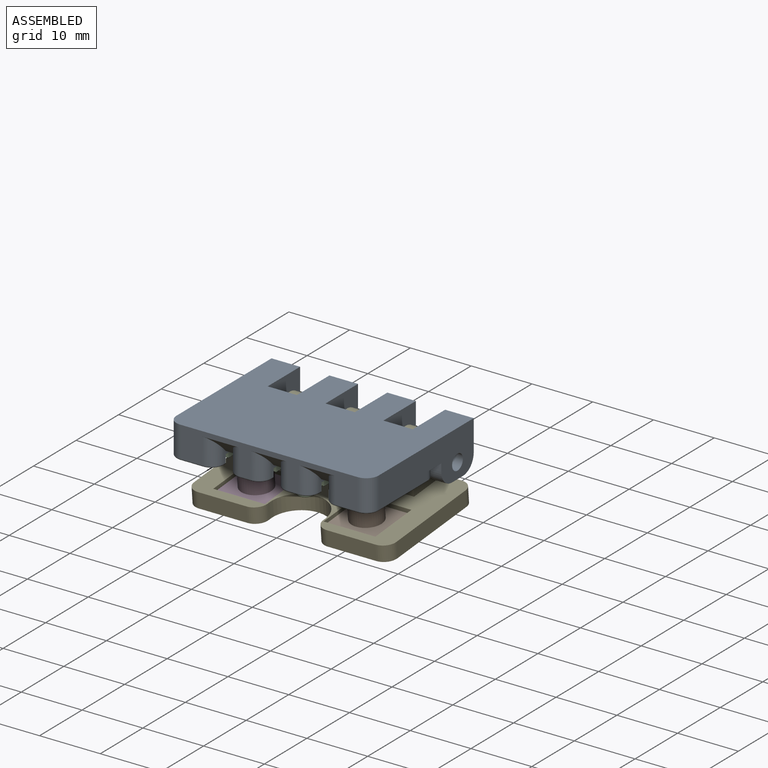
[diagram: assembled view]
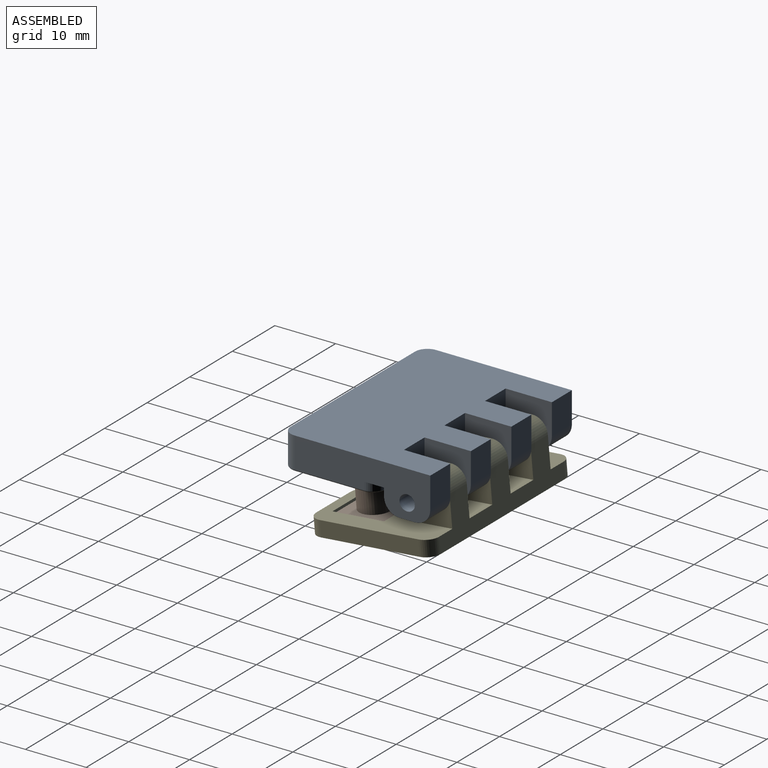
[diagram: assembled view, second angle]
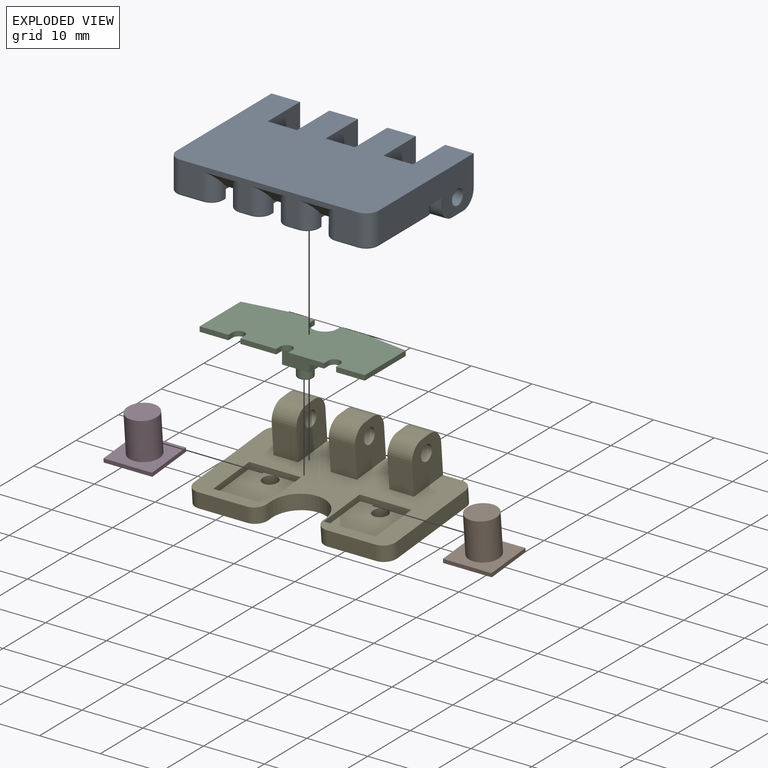
[diagram: exploded view]
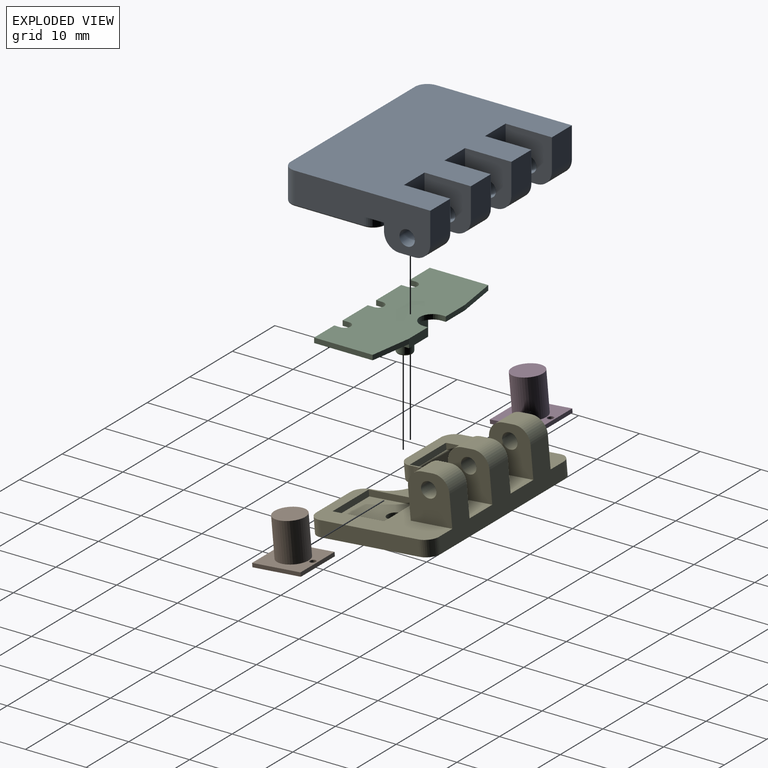
[diagram: exploded view, second angle]
ASSEMBLY  parts=5 mates=4
PART A: 121 faces, bbox 33.6x24.6x7.6 mm
  f0: plane 5.23x1.27mm, normal (0,1,0), area 6.6mm2, adj f7,f18,f64,f90
  f1: plane 5.89x1.27mm, normal (0,1,0), area 7.5mm2, adj f7,f61,f65,f116
  f2: plane 5.89x1.27mm, normal (0,1,0), area 7.5mm2, adj f7,f58,f62,f110
  f3: plane 29.21x5.08mm, normal (0,-1,0), area 71mm2, adj f33,f67,f68,f69,f73,f74,f75,f76
  f4: plane 32.77x16.52mm, normal (0,0,-1), area 145.7mm2, adj f41,f42,f50,f51,f83,f84,f85,f86
  f5: plane 5.38x2.03mm, normal (0,0,-1), area 9.6mm2, adj f114,f115,f116,f117,f118,f119
  f6: plane 5.38x2.03mm, normal (0,0,-1), area 9.6mm2, adj f108,f109,f110,f111,f112,f113
  f7: plane 28.19x11.68mm, normal (0,0,-1), area 296.7mm2, adj f0,f1,f2,f17,f18,f19,f20,f21
  f8: plane 4.7x2.54mm, normal (0,0,-1), area 11.9mm2, adj f41,f45,f48,f51
  f9: plane 4.7x2.54mm, normal (0,0,-1), area 11.9mm2, adj f38,f42,f47,f50
  f10: plane 4.7x2.54mm, normal (0,0,-1), area 11.9mm2, adj f28,f39,f46,f49
  f11: plane 5.08x4.7mm, normal (0,1,0), area 23.9mm2, adj f27,f33,f44,f53
  f12: plane 5.08x4.7mm, normal (0,1,0), area 23.9mm2, adj f33,f41,f45,f48
  f13: plane 5.08x4.7mm, normal (0,1,0), area 23.9mm2, adj f33,f38,f42,f47
  f14: plane 4.7x1.27mm, normal (0,-1,0), area 6mm2, adj f27,f31,f44,f52
  f15: plane 1.27x0.33mm, normal (0,-1,0), area 0.4mm2, adj f26,f31,f45,f51
  f16: plane 1.27x0.33mm, normal (0,-1,0), area 0.4mm2, adj f29,f32,f38,f50
  f17: plane 5.23x1.27mm, normal (0,1,0), area 6.6mm2, adj f7,f30,f59,f106
  f18: plane 10.57x1.27mm, normal (1,0,0), area 13.4mm2, adj f0,f7,f19,f91
  f19: plane 7.51x1.27mm, normal (0.15,-0.99,0), area 9.6mm2, adj f7,f18,f20,f92
  f20: plane 4.99x1.27mm, normal (0,-1,0), area 6.3mm2, adj f7,f19,f21,f93
  f21: plane 1.27x1.17mm, normal (-1,0,0), area 1.5mm2, adj f7,f20,f22,f94
  f22: cylinder r=1.6mm len=3.2mm, axis (0,0,1), area 6.4mm2, adj f7,f21,f23,f96
  f23: plane 1.27x1.17mm, normal (1,0,0), area 1.5mm2, adj f7,f22,f24,f98
  f24: plane 4.99x1.27mm, normal (0,-1,0), area 6.3mm2, adj f7,f23,f25,f100
  f25: plane 7.51x1.27mm, normal (-0.15,-0.99,0), area 9.6mm2, adj f7,f24,f30,f102
  f26: plane 8.13x1.27mm, normal (-0.15,0.99,0), area 10.4mm2, adj f15,f31,f79,f83
  f27: plane 22.35x7.62mm, normal (-1,0,0), area 121mm2, adj f11,f14,f31,f33,f35,f52,f53,f55
  f28: plane 22.35x7.62mm, normal (1,0,0), area 121mm2, adj f10,f32,f33,f34,f36,f46,f49,f57
  f29: plane 8.13x1.27mm, normal (0.15,0.99,0), area 10.4mm2, adj f16,f32,f82,f95
  f30: plane 10.57x1.27mm, normal (-1,0,0), area 13.4mm2, adj f7,f17,f25,f104
  f31: plane 9.86x3.21mm, normal (0,0,-1), area 7.8mm2, adj f14,f15,f26,f27,f43,f79
  f32: plane 9.86x3.21mm, normal (0,0,-1), area 7.8mm2, adj f16,f28,f29,f34,f37,f82
  f33: plane 33.27x24.38mm, normal (0,0,1), area 699.3mm2, adj f3,f11,f12,f13,f27,f28,f36,f37
  f34: plane 4.7x1.27mm, normal (0,-1,0), area 6mm2, adj f28,f32,f39,f49
  f35: plane 4.7x2.54mm, normal (0,0,-1), area 11.9mm2, adj f27,f44,f52,f53
  f36: plane 5.08x4.7mm, normal (0,1,0), area 23.9mm2, adj f28,f33,f39,f46
  f37: plane 4.83x3.81mm, normal (0,1,0), area 18.4mm2, adj f32,f33,f38,f39
  f38: plane 7.62x7.62mm, normal (1,0,0), area 50.2mm2, adj f9,f13,f16,f33,f37,f47,f50,f56
  f39: plane 7.62x7.62mm, normal (-1,0,0), area 50.2mm2, adj f10,f33,f34,f36,f37,f46,f49,f57
  f40: plane 5.08x4.83mm, normal (0,1,0), area 24.5mm2, adj f33,f41,f42,f120
  f41: plane 7.87x7.62mm, normal (1,0,0), area 50.2mm2, adj f4,f8,f12,f33,f40,f48,f51,f54
  f42: plane 7.87x7.62mm, normal (-1,0,0), area 50.2mm2, adj f4,f9,f13,f33,f40,f47,f50,f56
  f43: plane 4.83x3.81mm, normal (0,1,0), area 18.4mm2, adj f31,f33,f44,f45
  f44: plane 7.62x7.62mm, normal (1,0,0), area 50.2mm2, adj f11,f14,f33,f35,f43,f52,f53,f55
  f45: plane 7.62x7.62mm, normal (-1,0,0), area 50.2mm2, adj f8,f12,f15,f33,f43,f48,f51,f54
  f46: cylinder r=2.54mm len=4.7mm, axis (1,0,0), area 18.7mm2, adj f10,f28,f36,f39
  f47: cylinder r=2.54mm len=4.7mm, axis (1,0,0), area 18.7mm2, adj f9,f13,f38,f42
  f48: cylinder r=2.54mm len=4.7mm, axis (1,0,0), area 18.7mm2, adj f8,f12,f41,f45
  f49: cylinder r=2.54mm len=4.7mm, axis (-1,0,0), area 18.7mm2, adj f10,f28,f34,f39
  f50: cylinder r=2.54mm len=4.7mm, axis (-1,0,0), area 17.9mm2, adj f4,f9,f16,f38,f42,f95
  f51: cylinder r=2.54mm len=4.7mm, axis (-1,0,0), area 17.9mm2, adj f4,f8,f15,f41,f45,f83
  f52: cylinder r=2.54mm len=4.7mm, axis (-1,0,0), area 18.7mm2, adj f14,f27,f35,f44
  f53: cylinder r=2.54mm len=4.7mm, axis (1,0,0), area 18.7mm2, adj f11,f27,f35,f44
  f54: cylinder r=1.27mm len=4.7mm, axis (-1,0,0), area 37.5mm2, adj f41,f45
  f55: cylinder r=1.27mm len=4.7mm, axis (-1,0,0), area 37.5mm2, adj f27,f44
  f56: cylinder r=1.27mm len=4.7mm, axis (-1,0,0), area 37.5mm2, adj f38,f42
  f57: cylinder r=1.27mm len=4.7mm, axis (-1,0,0), area 37.5mm2, adj f28,f39
  f58: plane 3.3x2.24mm, normal (1,0,0), area 2.2mm2, adj f2,f7,f60,f67,f70,f77,f108
  f59: plane 3.3x2.24mm, normal (-1,0,0), area 2.2mm2, adj f7,f17,f60,f67,f70,f78,f107
  f60: plane 2.34x1.98mm, normal (0,0,-1), area 4.6mm2, adj f58,f59,f67,f70
  f61: plane 3.3x2.24mm, normal (1,0,0), area 2.2mm2, adj f1,f7,f63,f68,f71,f75,f114
  f62: plane 3.3x2.24mm, normal (-1,0,0), area 2.2mm2, adj f2,f7,f63,f68,f71,f76,f112
  f63: plane 2.34x1.98mm, normal (0,0,-1), area 4.6mm2, adj f61,f62,f68,f71
  f64: plane 3.3x2.24mm, normal (1,0,0), area 2.2mm2, adj f0,f7,f66,f69,f72,f73,f89
  f65: plane 3.3x2.24mm, normal (-1,0,0), area 2.2mm2, adj f1,f7,f66,f69,f72,f74,f118
  f66: plane 2.34x1.98mm, normal (0,0,-1), area 4.6mm2, adj f64,f65,f69,f72
  f67: plane 6.05x2.54mm, normal (0,-0.71,-0.71), area 9.6mm2, adj f3,f58,f59,f60,f77,f78
  f68: plane 6.05x2.54mm, normal (0,-0.71,-0.71), area 9.6mm2, adj f3,f61,f62,f63,f75,f76
  f69: plane 6.05x2.54mm, normal (0,-0.71,-0.71), area 9.6mm2, adj f3,f64,f65,f66,f73,f74
  f70: plane 1.98x0.46mm, normal (0,-0.71,-0.71), area 1.3mm2, adj f7,f58,f59,f60
  f71: plane 1.98x0.46mm, normal (0,-0.71,-0.71), area 1.3mm2, adj f7,f61,f62,f63
  f72: plane 1.98x0.46mm, normal (0,-0.71,-0.71), area 1.3mm2, adj f7,f64,f65,f66
  f73: cylinder r=2.03mm len=4.27mm, axis (0,0,1), area 11.3mm2, adj f3,f64,f69,f88
  f74: cylinder r=2.03mm len=4.27mm, axis (0,0,-1), area 11.3mm2, adj f3,f65,f69,f119
  f75: cylinder r=2.03mm len=4.27mm, axis (0,0,1), area 11.3mm2, adj f3,f61,f68,f115
  f76: cylinder r=2.03mm len=4.27mm, axis (0,0,-1), area 11.3mm2, adj f3,f62,f68,f113
  f77: cylinder r=2.03mm len=4.27mm, axis (0,0,1), area 11.3mm2, adj f3,f58,f67,f109
  f78: cylinder r=2.03mm len=4.27mm, axis (0,0,-1), area 11.3mm2, adj f3,f59,f67,f105
  f79: cylinder r=2.03mm len=2.01mm, axis (0,0,-1), area 3.7mm2, adj f26,f27,f31,f84
  f80: cylinder r=2.03mm len=5.08mm, axis (0,0,-1), area 16.2mm2, adj f3,f27,f33,f86
  f81: cylinder r=2.03mm len=5.08mm, axis (0,0,1), area 16.2mm2, adj f3,f28,f33,f101
  f82: cylinder r=2.03mm len=2.01mm, axis (0,0,1), area 3.7mm2, adj f28,f29,f32,f97
  f83: cylinder r=0.25mm len=9.95mm, axis (0.99,0.15,0), area 3.6mm2, adj f4,f26,f51,f84
  f84: torus R=1.78mm, axis (0,0,1), area 1.1mm2, adj f4,f79,f83,f85
  f85: cylinder r=0.25mm len=11.52mm, axis (0,1,0), area 4.6mm2, adj f4,f27,f84,f86
  f86: torus R=1.78mm, axis (0,0,1), area 1.2mm2, adj f4,f80,f85,f87
  f87: cylinder r=0.25mm len=3.71mm, axis (-1,0,0), area 1.5mm2, adj f3,f4,f86,f88
  f88: torus R=1.78mm, axis (0,0,1), area 1.2mm2, adj f4,f73,f87,f89
  f89: cylinder r=0.25mm len=0.51mm, axis (0,-1,0), area 0.2mm2, adj f4,f64,f88,f90
  f90: cylinder r=0.25mm len=5.49mm, axis (1,0,0), area 2.1mm2, adj f0,f4,f89,f91
  f91: cylinder r=0.25mm len=11.05mm, axis (0,-1,0), area 4.3mm2, adj f4,f18,f90,f92
  f92: cylinder r=0.25mm len=7.78mm, axis (-0.99,-0.15,0), area 3.1mm2, adj f4,f19,f91,f93
  f93: cylinder r=0.25mm len=5.26mm, axis (-1,0,0), area 2mm2, adj f4,f20,f92,f94
  f94: cylinder r=0.25mm len=1.42mm, axis (0,1,0), area 0.5mm2, adj f4,f21,f93,f96
  f95: cylinder r=0.25mm len=9.95mm, axis (0.99,-0.15,0), area 3.6mm2, adj f4,f29,f50,f97
  f96: torus R=1.35mm, axis (0,0,1), area 1.9mm2, adj f4,f22,f94,f98
  f97: torus R=1.78mm, axis (0,0,1), area 1.1mm2, adj f4,f82,f95,f99
  f98: cylinder r=0.25mm len=1.42mm, axis (0,-1,0), area 0.5mm2, adj f4,f23,f96,f100
  f99: cylinder r=0.25mm len=11.52mm, axis (0,-1,0), area 4.6mm2, adj f4,f28,f97,f101
  f100: cylinder r=0.25mm len=5.26mm, axis (-1,0,0), area 2mm2, adj f4,f24,f98,f102
  f101: torus R=1.78mm, axis (0,0,1), area 1.2mm2, adj f4,f81,f99,f103
  f102: cylinder r=0.25mm len=7.78mm, axis (-0.99,0.15,0), area 3.1mm2, adj f4,f25,f100,f104
  f103: cylinder r=0.25mm len=3.71mm, axis (-1,0,0), area 1.5mm2, adj f3,f4,f101,f105
  f104: cylinder r=0.25mm len=11.05mm, axis (0,1,0), area 4.3mm2, adj f4,f30,f102,f106
  f105: torus R=1.78mm, axis (0,0,1), area 1.2mm2, adj f4,f78,f103,f107
  f106: cylinder r=0.25mm len=5.49mm, axis (1,0,0), area 2.1mm2, adj f4,f17,f104,f107
  f107: cylinder r=0.25mm len=0.51mm, axis (0,1,0), area 0.2mm2, adj f4,f59,f105,f106
  f108: cylinder r=0.25mm len=0.51mm, axis (0,-1,0), area 0.2mm2, adj f6,f58,f109,f110
  f109: torus R=1.78mm, axis (0,0,1), area 1.2mm2, adj f6,f77,f108,f111
  f110: cylinder r=0.25mm len=5.89mm, axis (1,0,0), area 2.2mm2, adj f2,f6,f108,f112
  f111: cylinder r=0.25mm len=1.83mm, axis (-1,0,0), area 0.7mm2, adj f3,f6,f109,f113
  f112: cylinder r=0.25mm len=0.51mm, axis (0,1,0), area 0.2mm2, adj f6,f62,f110,f113
  f113: torus R=1.78mm, axis (0,0,1), area 1.2mm2, adj f6,f76,f111,f112
  f114: cylinder r=0.25mm len=0.51mm, axis (0,-1,0), area 0.2mm2, adj f5,f61,f115,f116
  f115: torus R=1.78mm, axis (0,0,1), area 1.2mm2, adj f5,f75,f114,f117
  f116: cylinder r=0.25mm len=5.89mm, axis (1,0,0), area 2.2mm2, adj f1,f5,f114,f118
  f117: cylinder r=0.25mm len=1.83mm, axis (-1,0,0), area 0.7mm2, adj f3,f5,f115,f119
  f118: cylinder r=0.25mm len=0.51mm, axis (0,1,0), area 0.2mm2, adj f5,f65,f116,f119
  f119: torus R=1.78mm, axis (0,0,1), area 1.2mm2, adj f5,f74,f117,f118
  f120: cylinder r=0.25mm len=4.83mm, axis (-1,0,0), area 1.9mm2, adj f4,f40,f41,f42
PART B: 9 faces, bbox 8x8x7 mm
  f0: plane 8x0.64mm, normal (0,1,0), area 5.1mm2, adj f1,f3,f4,f5
  f1: plane 8x0.64mm, normal (-1,0,0), area 5.1mm2, adj f0,f2,f4,f5
  f2: plane 8x0.64mm, normal (0,-1,0), area 5.1mm2, adj f1,f3,f4,f5
  f3: plane 8x0.64mm, normal (1,0,0), area 5.1mm2, adj f0,f2,f4,f5
  f4: plane 8x8mm, normal (0,0,1), area 42.9mm2, adj f0,f1,f2,f3,f6,f8
  f5: plane 8x8mm, normal (0,0,-1), area 63.2mm2, adj f0,f1,f2,f3,f8
  f6: cylinder r=2.54mm len=6.35mm, axis (0,0,-1), area 101.3mm2, adj f4,f7
  f7: plane 5.08x5.08mm, normal (0,0,1), area 20.3mm2, adj f6
  f8: cylinder r=0.51mm len=1.02mm, axis (0,0,1), area 2mm2, adj f4,f5
PART C: 36 faces, bbox 27.2x10.7x5.9 mm
  f0: plane 9.63x0.81mm, normal (1,0,0), area 7.8mm2, adj f1,f21,f22,f23
  f1: plane 7.04x1.04mm, normal (0.15,0.99,0), area 5.8mm2, adj f0,f2,f22,f23
  f2: plane 4.45x0.81mm, normal (0,1,0), area 3.6mm2, adj f1,f3,f22,f23
  f3: plane 0.81x0.66mm, normal (-1,0,0), area 0.5mm2, adj f2,f4,f22,f23
  f4: cylinder r=2.11mm len=4.22mm, axis (0,0,-1), area 5.4mm2, adj f3,f5,f22,f23
  f5: plane 0.81x0.66mm, normal (1,0,0), area 0.5mm2, adj f4,f6,f22,f23
  f6: plane 4.45x0.81mm, normal (0,1,0), area 3.6mm2, adj f5,f7,f22,f23
  f7: plane 7.04x1.04mm, normal (-0.15,0.99,0), area 5.8mm2, adj f6,f8,f22,f23
  f8: plane 9.63x0.81mm, normal (-1,0,0), area 7.8mm2, adj f7,f9,f22,f23
  f9: plane 4.72x0.81mm, normal (0,-1,0), area 3.8mm2, adj f8,f10,f22,f23
  f10: plane 1.02x0.81mm, normal (1,0,0), area 0.8mm2, adj f9,f11,f22,f23
  f11: cylinder r=0.99mm len=1.98mm, axis (0,0,-1), area 2.5mm2, adj f10,f12,f22,f23
  f12: plane 1.02x0.81mm, normal (-1,0,0), area 0.8mm2, adj f11,f13,f22,f23
  f13: plane 5.89x0.81mm, normal (0,-1,0), area 4.8mm2, adj f12,f14,f22,f23
  f14: plane 1.02x0.81mm, normal (1,0,0), area 0.8mm2, adj f13,f15,f22,f23
  f15: cylinder r=0.99mm len=1.98mm, axis (0,0,-1), area 2.5mm2, adj f14,f16,f22,f23
  f16: plane 1.02x0.81mm, normal (-1,0,0), area 0.8mm2, adj f15,f17,f22,f23
  f17: plane 5.89x0.81mm, normal (0,-1,0), area 4.8mm2, adj f16,f18,f22,f23
  f18: plane 1.02x0.81mm, normal (1,0,0), area 0.8mm2, adj f17,f19,f22,f23
  f19: cylinder r=0.99mm len=1.98mm, axis (0,0,-1), area 2.5mm2, adj f18,f20,f22,f23
  f20: plane 1.02x0.81mm, normal (-1,0,0), area 0.8mm2, adj f19,f21,f22,f23
  f21: plane 4.72x0.81mm, normal (0,-1,0), area 3.8mm2, adj f0,f20,f22,f23
  f22: plane 27.18x10.67mm, normal (0,0,1), area 262.2mm2, adj f0,f1,f2,f3,f4,f5,f6,f7
  f23: plane 27.18x10.67mm, normal (0,0,-1), area 216mm2, adj f0,f1,f2,f3,f4,f5,f6,f7
  f24: cylinder r=2.03mm len=4.06mm, axis (0,0,1), area 1.6mm2, adj f23,f25
  f25: plane 4.06x4.06mm, normal (0,0,-1), area 13mm2, adj f24
  f26: cylinder r=2.03mm len=4.06mm, axis (0,0,1), area 1.6mm2, adj f23,f27
  f27: plane 4.06x4.06mm, normal (0,0,-1), area 13mm2, adj f26
  f28: plane 4.5x3.05mm, normal (0,1,0), area 13.7mm2, adj f23,f29,f31,f32
  f29: plane 4.5x3.05mm, normal (1,0,0), area 13.7mm2, adj f23,f28,f30,f32
  f30: plane 4.5x3.05mm, normal (0,-1,0), area 13.7mm2, adj f23,f29,f31,f32
  f31: plane 4.5x3.05mm, normal (-1,0,0), area 13.7mm2, adj f23,f28,f30,f32
  f32: plane 4.5x4.5mm, normal (0,0,-1), area 15.1mm2, adj f28,f29,f30,f31,f33
  f33: cylinder r=1.27mm len=2.54mm, axis (0,0,1), area 14.2mm2, adj f32,f35
  f34: plane 2.03x2.03mm, normal (0,0,-1), area 3.2mm2, adj f35
  f35: torus R=1.02mm, axis (0,0,-1), area 3mm2, adj f33,f34
PART D: 9 faces, bbox 8x8x7 mm
  f0: plane 8x0.64mm, normal (0,1,0), area 5.1mm2, adj f1,f3,f4,f5
  f1: plane 8x0.64mm, normal (-1,0,0), area 5.1mm2, adj f0,f2,f4,f5
  f2: plane 8x0.64mm, normal (0,-1,0), area 5.1mm2, adj f1,f3,f4,f5
  f3: plane 8x0.64mm, normal (1,0,0), area 5.1mm2, adj f0,f2,f4,f5
  f4: plane 8x8mm, normal (0,0,1), area 42.9mm2, adj f0,f1,f2,f3,f6,f8
  f5: plane 8x8mm, normal (0,0,-1), area 63.2mm2, adj f0,f1,f2,f3,f8
  f6: cylinder r=2.54mm len=6.35mm, axis (0,0,-1), area 101.3mm2, adj f4,f7
  f7: plane 5.08x5.08mm, normal (0,0,1), area 20.3mm2, adj f6
  f8: cylinder r=0.51mm len=1.02mm, axis (0,0,1), area 2mm2, adj f4,f5
PART E: 49 faces, bbox 33.3x20.3x10.2 mm
  f0: plane 33.27x20.32mm, normal (0,0,1), area 384.6mm2, adj f1,f3,f4,f5,f9,f10,f11,f12
  f1: plane 8x2.54mm, normal (0,-1,0), area 20.3mm2, adj f0,f2,f41,f45
  f2: plane 33.27x20.32mm, normal (0,0,-1), area 604.6mm2, adj f1,f9,f10,f11,f12,f28,f29,f30
  f3: plane 5.08x4.06mm, normal (0,-1,0), area 20.6mm2, adj f0,f13,f18,f19
  f4: plane 5.08x4.06mm, normal (0,-1,0), area 20.6mm2, adj f0,f16,f17,f23
  f5: plane 5.08x4.32mm, normal (0,-1,0), area 21.9mm2, adj f0,f14,f15,f20
  f6: plane 4.06x1.78mm, normal (0,0,1), area 7.2mm2, adj f13,f18,f19,f21
  f7: plane 4.06x1.78mm, normal (0,0,1), area 7.2mm2, adj f16,f17,f23,f24
  f8: plane 4.32x1.78mm, normal (0,0,1), area 7.7mm2, adj f14,f15,f20,f22
  f9: plane 29.21x7.62mm, normal (0,1,0), area 137.4mm2, adj f0,f2,f13,f14,f15,f16,f17,f18
  f10: plane 16.26x2.54mm, normal (-1,0,0), area 41.3mm2, adj f0,f2,f44,f45
  f11: plane 8x2.54mm, normal (0,-1,0), area 20.3mm2, adj f0,f2,f42,f46
  f12: plane 16.26x2.54mm, normal (1,0,0), area 41.3mm2, adj f0,f2,f43,f46
  f13: plane 7.62x6.86mm, normal (1,0,0), area 44.4mm2, adj f0,f3,f6,f9,f19,f21,f25
  f14: plane 7.62x6.86mm, normal (-1,0,0), area 44.4mm2, adj f0,f5,f8,f9,f20,f22,f27
  f15: plane 7.62x6.86mm, normal (1,0,0), area 44.4mm2, adj f0,f5,f8,f9,f20,f22,f27
  f16: plane 7.62x6.86mm, normal (-1,0,0), area 44.4mm2, adj f0,f4,f7,f9,f23,f24,f26
  f17: plane 7.62x6.86mm, normal (1,0,0), area 44.4mm2, adj f0,f4,f7,f9,f23,f24,f26
  f18: plane 7.62x6.86mm, normal (-1,0,0), area 44.4mm2, adj f0,f3,f6,f9,f19,f21,f25
  f19: cylinder r=2.54mm len=4.06mm, axis (1,0,0), area 16.2mm2, adj f3,f6,f13,f18
  f20: cylinder r=2.54mm len=4.32mm, axis (1,0,0), area 17.2mm2, adj f5,f8,f14,f15
  f21: cylinder r=2.54mm len=4.06mm, axis (-1,0,0), area 16.2mm2, adj f6,f9,f13,f18
  f22: cylinder r=2.54mm len=4.32mm, axis (-1,0,0), area 17.2mm2, adj f8,f9,f14,f15
  f23: cylinder r=2.54mm len=4.06mm, axis (1,0,0), area 16.2mm2, adj f4,f7,f16,f17
  f24: cylinder r=2.54mm len=4.06mm, axis (-1,0,0), area 16.2mm2, adj f7,f9,f16,f17
  f25: cylinder r=1.27mm len=4.06mm, axis (1,0,0), area 32.4mm2, adj f13,f18
  f26: cylinder r=1.27mm len=4.06mm, axis (1,0,0), area 32.4mm2, adj f16,f17
  f27: cylinder r=1.27mm len=4.32mm, axis (1,0,0), area 34.5mm2, adj f14,f15
  f28: plane 2.54x0.51mm, normal (1,0,0), area 1.3mm2, adj f0,f2,f29,f41
  f29: cylinder r=4.57mm len=9.14mm, axis (0,0,-1), area 36.5mm2, adj f0,f2,f28,f30
  f30: plane 2.54x0.51mm, normal (-1,0,0), area 1.3mm2, adj f0,f2,f29,f42
  f31: plane 8.51x1.02mm, normal (0,-1,0), area 8.6mm2, adj f0,f32,f34,f35
  f32: plane 8.51x1.02mm, normal (1,0,0), area 8.6mm2, adj f0,f31,f33,f35
  f33: plane 8.51x1.02mm, normal (0,1,0), area 8.6mm2, adj f0,f32,f34,f35
  f34: plane 8.51x1.02mm, normal (-1,0,0), area 8.6mm2, adj f0,f31,f33,f35
  f35: plane 8.51x8.51mm, normal (0,0,1), area 67.3mm2, adj f31,f32,f33,f34,f48
  f36: plane 8.51x1.02mm, normal (0,-1,0), area 8.6mm2, adj f0,f37,f39,f40
  f37: plane 8.51x1.02mm, normal (1,0,0), area 8.6mm2, adj f0,f36,f38,f40
  f38: plane 8.51x1.02mm, normal (0,1,0), area 8.6mm2, adj f0,f37,f39,f40
  f39: plane 8.51x1.02mm, normal (-1,0,0), area 8.6mm2, adj f0,f36,f38,f40
  f40: plane 8.51x8.51mm, normal (0,0,1), area 67.3mm2, adj f36,f37,f38,f39,f47
  f41: cylinder r=2.03mm len=2.54mm, axis (0,0,-1), area 8.1mm2, adj f0,f1,f2,f28
  f42: cylinder r=2.03mm len=2.54mm, axis (0,0,1), area 8.1mm2, adj f0,f2,f11,f30
  f43: cylinder r=2.03mm len=2.54mm, axis (0,0,1), area 8.1mm2, adj f0,f2,f9,f12
  f44: cylinder r=2.03mm len=2.54mm, axis (0,0,-1), area 8.1mm2, adj f0,f2,f9,f10
  f45: cylinder r=2.03mm len=2.54mm, axis (0,0,1), area 8.1mm2, adj f0,f1,f2,f10
  f46: cylinder r=2.03mm len=2.54mm, axis (0,0,-1), area 8.1mm2, adj f0,f2,f11,f12
  f47: cylinder r=1.27mm len=2.54mm, axis (0,0,1), area 12.2mm2, adj f2,f40
  f48: cylinder r=1.27mm len=2.54mm, axis (0,0,1), area 12.2mm2, adj f2,f35
PLACE A t=(9.24,2.91,7.27)mm
PLACE B rot(axis=(1,0,0),5.1deg) t=(6.2,4.11,-2.3)mm
PLACE C t=(9.24,3,7.27)mm
PLACE D rot(axis=(1,0,0),5.1deg) t=(6.2,4.11,-2.3)mm
PLACE E rot(axis=(1,0,0),5.1deg) t=(6.2,4.29,-2.29)mm
MATE revolute E.f25 <-> A.f54  axis (-1,0,0) through (10.9,20.43,6.81)mm
MATE fastened D.f5 <-> E.f40  axis (0,0.09,-1) through (13.75,9.94,-0.25)mm
MATE fastened B.f5 <-> E.f35  axis (0,0.09,-1) through (31.91,9.94,-0.25)mm
MATE fastened C.f22 <-> A.f7  axis (0,0,1) through (22.83,8.22,8.08)mm
